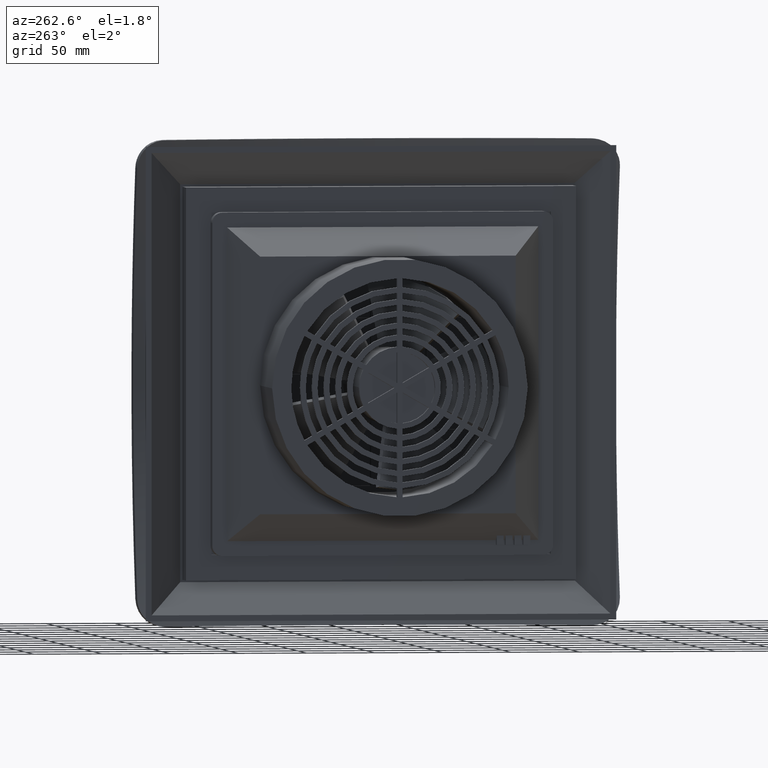
[diagram: clean part render]
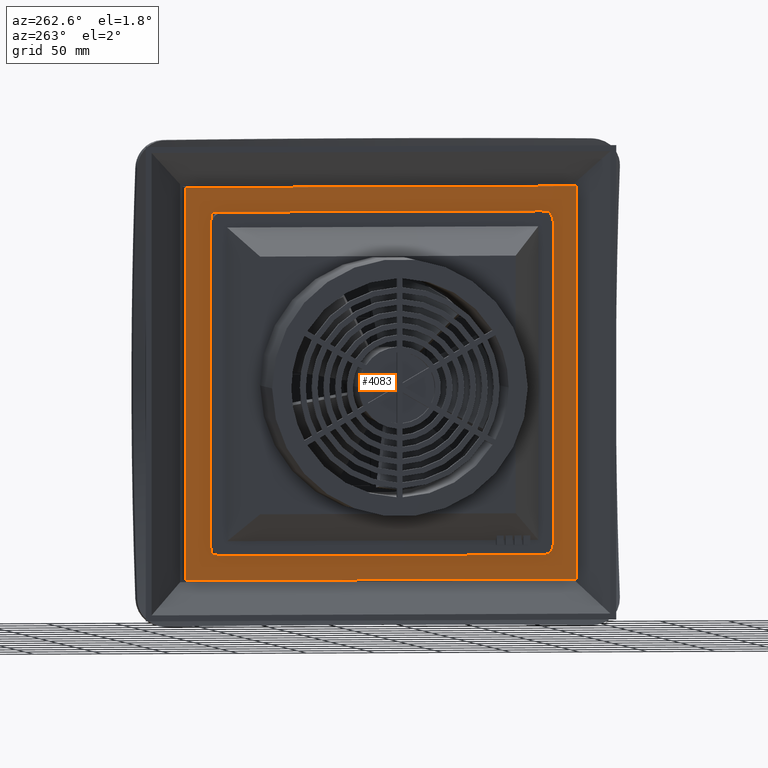
[diagram: same view with one face highlighted and labeled with its STEP entity id]
A machine part, auxiliary view. The second image highlights one B-rep face of the part: STEP entity #4083.
In plain terms, the highlighted planar face has unit normal (1, -0, 0).
Its self-contained STEP definition (entity closure, byte-faithful):
#56 = VERTEX_POINT ( 'NONE', #13263 ) ;
#57 = DIRECTION ( 'NONE',  ( 2.449212707644750079E-16, 1.000000000000000000, 0.000000000000000000 ) ) ;
#436 = CIRCLE ( 'NONE', #5771, 0.2952755905511807999 ) ;
#506 = CARTESIAN_POINT ( 'NONE',  ( 2.832504853821441699E-16, 4.625984251968504601, 4.625984251968504601 ) ) ;
#565 = CARTESIAN_POINT ( 'NONE',  ( 1.206526535606494740E-15, 5.629921259842520342, 5.629921259842520342 ) ) ;
#585 = EDGE_CURVE ( 'NONE', #891, #13232, #15493, .T. ) ;
#881 = VECTOR ( 'NONE', #57, 39.37007874015748143 ) ;
#891 = VERTEX_POINT ( 'NONE', #7490 ) ;
#940 = DIRECTION ( 'NONE',  ( -1.000000000000000000, 1.224606353822379970E-16, -6.123031769111889989E-17 ) ) ;
#1026 = ORIENTED_EDGE ( 'NONE', *, *, #9504, .F. ) ;
#1311 = DIRECTION ( 'NONE',  ( -1.000000000000000000, 1.224606353822379970E-16, -6.123031769111889989E-17 ) ) ;
#1328 = CARTESIAN_POINT ( 'NONE',  ( 1.723609336580708574E-15, 5.629921259842520342, 5.629921259842520342 ) ) ;
#1361 = CARTESIAN_POINT ( 'NONE',  ( -1.447313951896677723E-15, -4.625984251968504601, 4.921259842519684291 ) ) ;
#1378 = VECTOR ( 'NONE', #6630, 39.37007874015748143 ) ;
#1405 = DIRECTION ( 'NONE',  ( -1.224606353822378244E-16, -1.000000000000000000, 0.000000000000000000 ) ) ;
#1449 = ORIENTED_EDGE ( 'NONE', *, *, #15684, .F. ) ;
#1493 = AXIS2_PLACEMENT_3D ( 'NONE', #8940, #7667, #4097 ) ;
#1588 = CARTESIAN_POINT ( 'NONE',  ( -1.205321214392101625E-15, -4.921259842519685179, 9.409477889450157238E-16 ) ) ;
#1779 = CARTESIAN_POINT ( 'NONE',  ( 3.001249823836341161E-16, 5.594824691024408863E-16, -4.901574803149606474 ) ) ;
#1850 = DIRECTION ( 'NONE',  ( -1.224606353822381203E-16, -1.000000000000000000, 0.000000000000000000 ) ) ;
#1983 = VECTOR ( 'NONE', #12152, 39.37007874015748143 ) ;
#1994 = VECTOR ( 'NONE', #6176, 39.37007874015748143 ) ;
#2000 = DIRECTION ( 'NONE',  ( 1.000000000000000000, -2.449212707644750079E-16, 6.123031769111889989E-17 ) ) ;
#2023 = DIRECTION ( 'NONE',  ( -1.224606353822382189E-16, -1.000000000000000000, 0.000000000000000000 ) ) ;
#2183 = LINE ( 'NONE', #4647, #9558 ) ;
#2264 = VERTEX_POINT ( 'NONE', #4098 ) ;
#2439 = EDGE_CURVE ( 'NONE', #9483, #8477, #4057, .T. ) ;
#2453 = CARTESIAN_POINT ( 'NONE',  ( 8.497514561464337916E-16, 4.625984251968504601, -4.625984251968504601 ) ) ;
#2464 = VECTOR ( 'NONE', #9500, 39.37007874015748143 ) ;
#2526 = CARTESIAN_POINT ( 'NONE',  ( -9.003749471509000309E-16, -4.901574803149606474, -4.901574803149606474 ) ) ;
#2547 = LINE ( 'NONE', #11034, #1983 ) ;
#2584 = CARTESIAN_POINT ( 'NONE',  ( 3.169994793851240622E-16, 4.731991433211304887, -4.901574803149606474 ) ) ;
#2659 = VERTEX_POINT ( 'NONE', #8099 ) ;
#2692 = VERTEX_POINT ( 'NONE', #15410 ) ;
#2759 = CIRCLE ( 'NONE', #1493, 0.2952755905511807999 ) ;
#2838 = CARTESIAN_POINT ( 'NONE',  ( 3.001249823836341161E-16, 5.594824691024408863E-16, -4.901574803149606474 ) ) ;
#2943 = VERTEX_POINT ( 'NONE', #10304 ) ;
#2986 = ORIENTED_EDGE ( 'NONE', *, *, #10201, .F. ) ;
#3036 = CARTESIAN_POINT ( 'NONE',  ( 7.941462525515707839E-32, 5.594824691024409849E-16, 9.409477889450157238E-16 ) ) ;
#3059 = EDGE_CURVE ( 'NONE', #13232, #8417, #9352, .T. ) ;
#3172 = VECTOR ( 'NONE', #4092, 39.37007874015748143 ) ;
#3190 = LINE ( 'NONE', #15266, #9009 ) ;
#3212 = DIRECTION ( 'NONE',  ( -1.000000000000000000, 1.224606353822379970E-16, -6.123031769111889989E-17 ) ) ;
#3314 = DIRECTION ( 'NONE',  ( 2.449212707644750079E-16, 1.000000000000000000, 0.000000000000000000 ) ) ;
#3453 = EDGE_CURVE ( 'NONE', #2264, #2659, #4894, .T. ) ;
#3469 = VECTOR ( 'NONE', #3945, 39.37007874015748143 ) ;
#3508 = AXIS2_PLACEMENT_3D ( 'NONE', #8015, #940, #8246 ) ;
#3539 = LINE ( 'NONE', #10751, #14644 ) ;
#3588 = EDGE_CURVE ( 'NONE', #8298, #13988, #8532, .T. ) ;
#3701 = CARTESIAN_POINT ( 'NONE',  ( 1.200499929534532914E-15, 4.901574803149606474, 9.409477889450157238E-16 ) ) ;
#3753 = CIRCLE ( 'NONE', #12622, 0.2952755905511807999 ) ;
#3945 = DIRECTION ( 'NONE',  ( 9.182470242606231856E-49, 1.000000000000000000, -1.499660721822139903E-32 ) ) ;
#4057 = LINE ( 'NONE', #4208, #9958 ) ;
#4083 = ADVANCED_FACE ( 'NONE', ( #6847, #14068 ), #6686, .F. ) ;
#4092 = DIRECTION ( 'NONE',  ( -0.000000000000000000, -0.000000000000000000, -1.000000000000000000 ) ) ;
#4097 = DIRECTION ( 'NONE',  ( -1.224606353822382189E-16, -1.000000000000000000, 0.000000000000000000 ) ) ;
#4098 = CARTESIAN_POINT ( 'NONE',  ( -1.187241396176221474E-15, -4.921259842519685179, 4.625984251968504601 ) ) ;
#4157 = EDGE_CURVE ( 'NONE', #8634, #5769, #3190, .T. ) ;
#4208 = CARTESIAN_POINT ( 'NONE',  ( -1.200499929534533309E-15, -4.901574803149606474, 9.409477889450157238E-16 ) ) ;
#4260 = DIRECTION ( 'NONE',  ( -2.449212707644750079E-16, -1.000000000000000000, -0.000000000000000000 ) ) ;
#4265 = AXIS2_PLACEMENT_3D ( 'NONE', #2453, #8486, #13401 ) ;
#4391 = ORIENTED_EDGE ( 'NONE', *, *, #3453, .F. ) ;
#4518 = VERTEX_POINT ( 'NONE', #9579 ) ;
#4647 = CARTESIAN_POINT ( 'NONE',  ( 3.013303035980261952E-16, 5.594824691024408863E-16, -4.921259842519685179 ) ) ;
#4754 = DIRECTION ( 'NONE',  ( -1.224606353822380216E-16, -1.000000000000000000, 0.000000000000000000 ) ) ;
#4813 = CARTESIAN_POINT ( 'NONE',  ( 1.429234133680796190E-15, 4.625984251968504601, -4.625984251968504601 ) ) ;
#4889 = EDGE_CURVE ( 'NONE', #2692, #11109, #9016, .T. ) ;
#4894 = CIRCLE ( 'NONE', #6419, 0.2952755905511807999 ) ;
#4995 = ORIENTED_EDGE ( 'NONE', *, *, #9429, .F. ) ;
#5188 = CARTESIAN_POINT ( 'NONE',  ( -5.626081805328726991E-16, -4.731991433211305775, -4.901574803149605586 ) ) ;
#5236 = VERTEX_POINT ( 'NONE', #5188 ) ;
#5245 = DIRECTION ( 'NONE',  ( -6.123031769111889989E-17, 1.499660721822135524E-32, 1.000000000000000000 ) ) ;
#5324 = DIRECTION ( 'NONE',  ( -6.123031769111889989E-17, 1.499660721822135524E-32, 1.000000000000000000 ) ) ;
#5588 = CARTESIAN_POINT ( 'NONE',  ( -1.500624911918166981E-15, -4.901574803149606474, 4.901574803149606474 ) ) ;
#5699 = VERTEX_POINT ( 'NONE', #10475 ) ;
#5769 = VERTEX_POINT ( 'NONE', #14215 ) ;
#5771 = AXIS2_PLACEMENT_3D ( 'NONE', #12049, #7133, #4754 ) ;
#5947 = ORIENTED_EDGE ( 'NONE', *, *, #3588, .F. ) ;
#6004 = VECTOR ( 'NONE', #4260, 39.37007874015748143 ) ;
#6091 = LINE ( 'NONE', #10932, #881 ) ;
#6176 = DIRECTION ( 'NONE',  ( 2.433944472375248849E-32, 9.937660640001399960E-17, 1.000000000000000000 ) ) ;
#6255 = CARTESIAN_POINT ( 'NONE',  ( -1.429234133680796190E-15, -4.625984251968504601, 4.625984251968504601 ) ) ;
#6388 = CARTESIAN_POINT ( 'NONE',  ( 5.484211525484059200E-16, 4.625984251968504601, 4.921259842519685179 ) ) ;
#6419 = AXIS2_PLACEMENT_3D ( 'NONE', #11701, #3212, #2023 ) ;
#6630 = DIRECTION ( 'NONE',  ( -2.449212707644750079E-16, -1.000000000000000000, -0.000000000000000000 ) ) ;
#6666 = VECTOR ( 'NONE', #3314, 39.37007874015748143 ) ;
#6686 = PLANE ( 'NONE',  #15603 ) ;
#6709 = EDGE_CURVE ( 'NONE', #2943, #2264, #12702, .T. ) ;
#6847 = FACE_OUTER_BOUND ( 'NONE', #13308, .T. ) ;
#7046 = CIRCLE ( 'NONE', #4265, 0.2952755905511807999 ) ;
#7133 = DIRECTION ( 'NONE',  ( -1.000000000000000000, 1.224606353822379970E-16, -6.123031769111889989E-17 ) ) ;
#7266 = VERTEX_POINT ( 'NONE', #10305 ) ;
#7267 = CARTESIAN_POINT ( 'NONE',  ( 1.190116285918084977E-15, 4.901574803149606474, 4.731991433211304887 ) ) ;
#7335 = EDGE_CURVE ( 'NONE', #15235, #2692, #10763, .T. ) ;
#7350 = CARTESIAN_POINT ( 'NONE',  ( -1.723609336580708574E-15, -5.629921259842520342, -5.629921259842520342 ) ) ;
#7371 = CARTESIAN_POINT ( 'NONE',  ( -3.001249823836338695E-16, 5.594824691024410835E-16, 4.901574803149606474 ) ) ;
#7373 = LINE ( 'NONE', #1328, #1994 ) ;
#7454 = ORIENTED_EDGE ( 'NONE', *, *, #11005, .F. ) ;
#7490 = CARTESIAN_POINT ( 'NONE',  ( -3.169994793851221394E-16, -4.731991433211304887, 4.901574803149606474 ) ) ;
#7667 = DIRECTION ( 'NONE',  ( -1.000000000000000000, 1.224606353822379970E-16, -6.123031769111889989E-17 ) ) ;
#7786 = VECTOR ( 'NONE', #8328, 39.37007874015748143 ) ;
#8015 = CARTESIAN_POINT ( 'NONE',  ( -8.835004501494118104E-16, -4.625984251968504601, -4.625984251968504601 ) ) ;
#8028 = CARTESIAN_POINT ( 'NONE',  ( 1.186870859225564343E-15, 4.901574803149605586, -4.731991433211305775 ) ) ;
#8099 = CARTESIAN_POINT ( 'NONE',  ( -1.186870859225564934E-15, -4.901574803149606474, 4.731991433211304887 ) ) ;
#8221 = EDGE_CURVE ( 'NONE', #2659, #14220, #3539, .T. ) ;
#8246 = DIRECTION ( 'NONE',  ( -1.224606353822382189E-16, -1.000000000000000000, 0.000000000000000000 ) ) ;
#8298 = VERTEX_POINT ( 'NONE', #10988 ) ;
#8318 = EDGE_CURVE ( 'NONE', #8417, #9899, #3753, .T. ) ;
#8327 = ORIENTED_EDGE ( 'NONE', *, *, #13584, .F. ) ;
#8328 = DIRECTION ( 'NONE',  ( 2.449212707644750079E-16, 1.000000000000000000, 0.000000000000000000 ) ) ;
#8417 = VERTEX_POINT ( 'NONE', #6388 ) ;
#8477 = VERTEX_POINT ( 'NONE', #10583 ) ;
#8486 = DIRECTION ( 'NONE',  ( -1.000000000000000000, 1.224606353822379970E-16, -6.123031769111889989E-17 ) ) ;
#8532 = LINE ( 'NONE', #14328, #11997 ) ;
#8550 = DIRECTION ( 'NONE',  ( -1.224606353822378244E-16, -1.000000000000000000, 0.000000000000000000 ) ) ;
#8634 = VERTEX_POINT ( 'NONE', #12086 ) ;
#8671 = ORIENTED_EDGE ( 'NONE', *, *, #585, .F. ) ;
#8893 = ORIENTED_EDGE ( 'NONE', *, *, #10480, .F. ) ;
#8940 = CARTESIAN_POINT ( 'NONE',  ( 8.835004501494118104E-16, 4.625984251968504601, 4.625984251968504601 ) ) ;
#9009 = VECTOR ( 'NONE', #13917, 39.37007874015748143 ) ;
#9016 = LINE ( 'NONE', #1779, #1378 ) ;
#9295 = ORIENTED_EDGE ( 'NONE', *, *, #14034, .F. ) ;
#9352 = LINE ( 'NONE', #12840, #6666 ) ;
#9361 = ORIENTED_EDGE ( 'NONE', *, *, #8221, .F. ) ;
#9412 = ORIENTED_EDGE ( 'NONE', *, *, #10586, .F. ) ;
#9429 = EDGE_CURVE ( 'NONE', #56, #5236, #436, .T. ) ;
#9483 = VERTEX_POINT ( 'NONE', #2526 ) ;
#9500 = DIRECTION ( 'NONE',  ( 6.123031769111889989E-17, -1.499660721822135524E-32, -1.000000000000000000 ) ) ;
#9504 = EDGE_CURVE ( 'NONE', #9899, #8298, #10776, .T. ) ;
#9558 = VECTOR ( 'NONE', #14335, 39.37007874015748143 ) ;
#9579 = CARTESIAN_POINT ( 'NONE',  ( 1.034165601948423922E-15, 5.629921259842520342, -5.629921259842520342 ) ) ;
#9782 = ORIENTED_EDGE ( 'NONE', *, *, #4889, .F. ) ;
#9870 = CARTESIAN_POINT ( 'NONE',  ( 5.626081805328747698E-16, 4.731991433211307552, 4.901574803149604698 ) ) ;
#9899 = VERTEX_POINT ( 'NONE', #9870 ) ;
#9958 = VECTOR ( 'NONE', #5245, 39.37007874015748143 ) ;
#9981 = CARTESIAN_POINT ( 'NONE',  ( -1.034165601948425105E-15, -8.442971780337245561E-32, -5.629921259842520342 ) ) ;
#10103 = CIRCLE ( 'NONE', #3508, 0.2952755905511807999 ) ;
#10117 = AXIS2_PLACEMENT_3D ( 'NONE', #4813, #1311, #8550 ) ;
#10196 = DIRECTION ( 'NONE',  ( -1.000000000000000000, 1.224606353822379970E-16, -6.123031769111889989E-17 ) ) ;
#10201 = EDGE_CURVE ( 'NONE', #14645, #7266, #2547, .T. ) ;
#10290 = LINE ( 'NONE', #2838, #6004 ) ;
#10304 = CARTESIAN_POINT ( 'NONE',  ( -9.196600865811748749E-16, -4.921259842519684291, -4.625984251968504601 ) ) ;
#10305 = CARTESIAN_POINT ( 'NONE',  ( -1.034165601948423922E-15, -5.629921259842520342, 5.629921259842520342 ) ) ;
#10390 = ORIENTED_EDGE ( 'NONE', *, *, #15524, .F. ) ;
#10475 = CARTESIAN_POINT ( 'NONE',  ( 1.440823098511639608E-15, 4.625984251968504601, -4.921259842519685179 ) ) ;
#10480 = EDGE_CURVE ( 'NONE', #8477, #2943, #10103, .T. ) ;
#10539 = ORIENTED_EDGE ( 'NONE', *, *, #10671, .F. ) ;
#10583 = CARTESIAN_POINT ( 'NONE',  ( -1.190116285918083005E-15, -4.901574803149606474, -4.731991433211304887 ) ) ;
#10586 = EDGE_CURVE ( 'NONE', #5769, #15235, #7046, .T. ) ;
#10671 = EDGE_CURVE ( 'NONE', #4518, #14645, #7373, .T. ) ;
#10696 = ORIENTED_EDGE ( 'NONE', *, *, #8318, .F. ) ;
#10751 = CARTESIAN_POINT ( 'NONE',  ( -1.200499929534533309E-15, -4.901574803149606474, 9.409477889450157238E-16 ) ) ;
#10763 = LINE ( 'NONE', #3701, #2464 ) ;
#10776 = LINE ( 'NONE', #7371, #7786 ) ;
#10932 = CARTESIAN_POINT ( 'NONE',  ( -3.001249823836338695E-16, 5.594824691024410835E-16, 4.901574803149606474 ) ) ;
#10988 = CARTESIAN_POINT ( 'NONE',  ( 9.003749471508990448E-16, 4.901574803149606474, 4.901574803149606474 ) ) ;
#11005 = EDGE_CURVE ( 'NONE', #11109, #5699, #15184, .T. ) ;
#11034 = CARTESIAN_POINT ( 'NONE',  ( 1.034165601948425302E-15, -5.629921259842520342, 5.629921259842520342 ) ) ;
#11108 = EDGE_CURVE ( 'NONE', #13988, #8634, #2759, .T. ) ;
#11109 = VERTEX_POINT ( 'NONE', #2584 ) ;
#11517 = DIRECTION ( 'NONE',  ( 2.449212707644750079E-16, 1.000000000000000000, 0.000000000000000000 ) ) ;
#11666 = EDGE_LOOP ( 'NONE', ( #9782, #14601, #9412, #14439, #14258, #5947, #1026, #10696, #11730, #8671, #8327, #9361, #4391, #15690, #8893, #13135, #10390, #4995, #1449, #7454 ) ) ;
#11670 = AXIS2_PLACEMENT_3D ( 'NONE', #6255, #12282, #1405 ) ;
#11701 = CARTESIAN_POINT ( 'NONE',  ( -8.497514561464337916E-16, -4.625984251968504601, 4.625984251968504601 ) ) ;
#11730 = ORIENTED_EDGE ( 'NONE', *, *, #3059, .F. ) ;
#11950 = LINE ( 'NONE', #7350, #3172 ) ;
#11997 = VECTOR ( 'NONE', #13367, 39.37007874015748143 ) ;
#12049 = CARTESIAN_POINT ( 'NONE',  ( -2.832504853821441699E-16, -4.625984251968504601, -4.625984251968504601 ) ) ;
#12086 = CARTESIAN_POINT ( 'NONE',  ( 9.196600865811748749E-16, 4.921259842519684291, 4.625984251968504601 ) ) ;
#12152 = DIRECTION ( 'NONE',  ( 0.000000000000000000, -1.000000000000000000, 1.987532128000279992E-16 ) ) ;
#12186 = ORIENTED_EDGE ( 'NONE', *, *, #15508, .F. ) ;
#12282 = DIRECTION ( 'NONE',  ( -1.000000000000000000, 1.224606353822379970E-16, -6.123031769111889989E-17 ) ) ;
#12622 = AXIS2_PLACEMENT_3D ( 'NONE', #506, #10196, #1850 ) ;
#12702 = LINE ( 'NONE', #1588, #13085 ) ;
#12840 = CARTESIAN_POINT ( 'NONE',  ( -3.013303035980259487E-16, 5.594824691024410835E-16, 4.921259842519685179 ) ) ;
#13085 = VECTOR ( 'NONE', #5324, 39.37007874015748143 ) ;
#13102 = LINE ( 'NONE', #9981, #3469 ) ;
#13106 = CARTESIAN_POINT ( 'NONE',  ( -1.378887469264566150E-15, -5.629921259842520342, -5.629921259842520342 ) ) ;
#13135 = ORIENTED_EDGE ( 'NONE', *, *, #2439, .F. ) ;
#13139 = DIRECTION ( 'NONE',  ( -6.123031769111889989E-17, 1.499660721822135524E-32, 1.000000000000000000 ) ) ;
#13232 = VERTEX_POINT ( 'NONE', #1361 ) ;
#13263 = CARTESIAN_POINT ( 'NONE',  ( -5.484211525484059200E-16, -4.625984251968504601, -4.921259842519685179 ) ) ;
#13308 = EDGE_LOOP ( 'NONE', ( #9295, #2986, #10539, #12186 ) ) ;
#13367 = DIRECTION ( 'NONE',  ( 6.123031769111889989E-17, -1.499660721822135524E-32, -1.000000000000000000 ) ) ;
#13401 = DIRECTION ( 'NONE',  ( -1.224606353822382189E-16, -1.000000000000000000, 0.000000000000000000 ) ) ;
#13584 = EDGE_CURVE ( 'NONE', #14220, #891, #6091, .T. ) ;
#13917 = DIRECTION ( 'NONE',  ( 6.123031769111889989E-17, -1.499660721822135524E-32, -1.000000000000000000 ) ) ;
#13988 = VERTEX_POINT ( 'NONE', #7267 ) ;
#14034 = EDGE_CURVE ( 'NONE', #7266, #14715, #11950, .T. ) ;
#14068 = FACE_BOUND ( 'NONE', #11666, .T. ) ;
#14215 = CARTESIAN_POINT ( 'NONE',  ( 1.187241396176221474E-15, 4.921259842519685179, -4.625984251968504601 ) ) ;
#14220 = VERTEX_POINT ( 'NONE', #5588 ) ;
#14258 = ORIENTED_EDGE ( 'NONE', *, *, #11108, .F. ) ;
#14328 = CARTESIAN_POINT ( 'NONE',  ( 1.200499929534532914E-15, 4.901574803149606474, 9.409477889450157238E-16 ) ) ;
#14335 = DIRECTION ( 'NONE',  ( -2.449212707644750079E-16, -1.000000000000000000, -0.000000000000000000 ) ) ;
#14439 = ORIENTED_EDGE ( 'NONE', *, *, #4157, .F. ) ;
#14601 = ORIENTED_EDGE ( 'NONE', *, *, #7335, .F. ) ;
#14644 = VECTOR ( 'NONE', #13139, 39.37007874015748143 ) ;
#14645 = VERTEX_POINT ( 'NONE', #565 ) ;
#14715 = VERTEX_POINT ( 'NONE', #13106 ) ;
#15184 = CIRCLE ( 'NONE', #10117, 0.2952755905511807999 ) ;
#15235 = VERTEX_POINT ( 'NONE', #8028 ) ;
#15266 = CARTESIAN_POINT ( 'NONE',  ( 1.205321214392101231E-15, 4.921259842519685179, 9.409477889450157238E-16 ) ) ;
#15410 = CARTESIAN_POINT ( 'NONE',  ( 1.500624911918166981E-15, 4.901574803149606474, -4.901574803149606474 ) ) ;
#15493 = CIRCLE ( 'NONE', #11670, 0.2952755905511807999 ) ;
#15508 = EDGE_CURVE ( 'NONE', #14715, #4518, #13102, .T. ) ;
#15524 = EDGE_CURVE ( 'NONE', #5236, #9483, #10290, .T. ) ;
#15603 = AXIS2_PLACEMENT_3D ( 'NONE', #3036, #2000, #11517 ) ;
#15684 = EDGE_CURVE ( 'NONE', #5699, #56, #2183, .T. ) ;
#15690 = ORIENTED_EDGE ( 'NONE', *, *, #6709, .F. ) ;